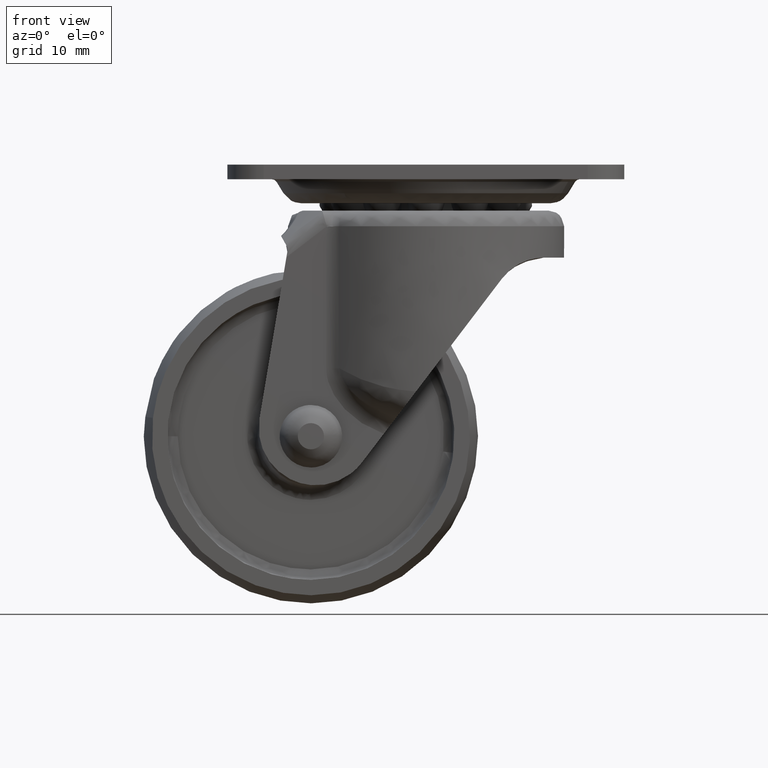
[diagram: clean part render]
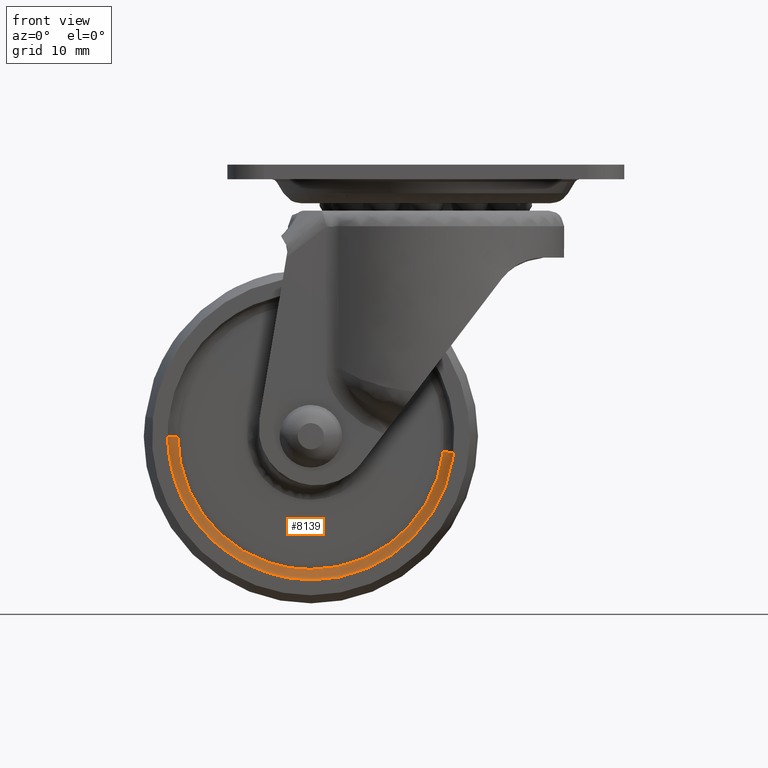
[diagram: same view with one face highlighted and labeled with its STEP entity id]
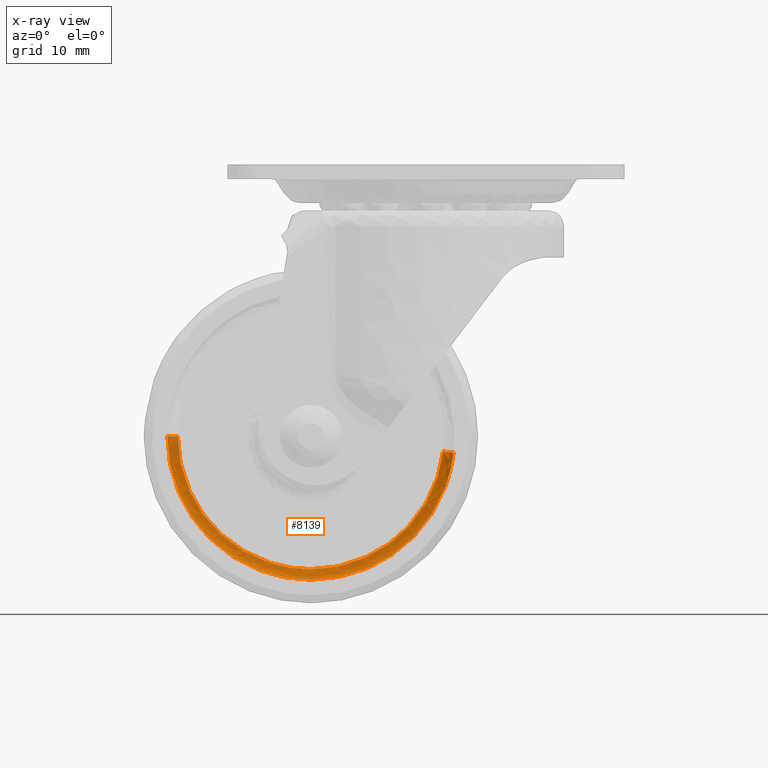
[diagram: x-ray of the same camera — body ghosted, the highlighted face saturated]
A machine part, front view. The second image highlights one B-rep face of the part: STEP entity #8139.
The next image is the same camera in x-ray: the body ghosted, the highlighted face saturated — about 0% of this face is hidden behind the body in this view.
In plain terms, the highlighted face is a freeform B-spline surface patch.
Its self-contained STEP definition (entity closure, byte-faithful):
#6840=CARTESIAN_POINT('',(-13.750000000000000,-5.499999999782693,0.0));
#6841=VERTEX_POINT('',#6840);
#6903=CARTESIAN_POINT('',(13.658035033293300,-5.499999999786727,-1.587633153260749));
#6904=VERTEX_POINT('',#6903);
#6920=CARTESIAN_POINT('',(0.0,-5.500000000000000,-13.750000000000000));
#6921=VERTEX_POINT('',#6920);
#6922=CARTESIAN_POINT('',(0.0,-5.500000000000000,-13.750000000000000));
#6923=CARTESIAN_POINT('',(12.244260886346135,-5.499999999999999,-13.750000000000005));
#6924=CARTESIAN_POINT('',(13.658035033293304,-5.499999999786727,-1.587633153260750));
#6932=(BOUNDED_CURVE()B_SPLINE_CURVE(2,(#6922,#6923,#6924),.UNSPECIFIED.,.F.,.U.)B_SPLINE_CURVE_WITH_KNOTS((3,3),(0.0,0.229999999999666),.UNSPECIFIED.)CURVE()GEOMETRIC_REPRESENTATION_ITEM()RATIONAL_B_SPLINE_CURVE((1.0,0.730538238692015,0.956886118190002))REPRESENTATION_ITEM(''));
#6933=EDGE_CURVE('',#6921,#6904,#6932,.T.);
#6935=CARTESIAN_POINT('',(-13.750000000000000,-5.499999999782693,0.0));
#6936=CARTESIAN_POINT('',(-13.750000000000000,-5.500000000000000,-13.750000000000000));
#6937=CARTESIAN_POINT('',(0.0,-5.500000000000000,-13.750000000000000));
#6945=(BOUNDED_CURVE()B_SPLINE_CURVE(2,(#6935,#6936,#6937),.UNSPECIFIED.,.F.,.U.)B_SPLINE_CURVE_WITH_KNOTS((3,3),(0.750000000000000,1.0),.UNSPECIFIED.)CURVE()GEOMETRIC_REPRESENTATION_ITEM()RATIONAL_B_SPLINE_CURVE((1.0,0.707106781186547,1.0))REPRESENTATION_ITEM(''));
#6946=EDGE_CURVE('',#6841,#6921,#6945,.T.);
#8015=CARTESIAN_POINT('',(12.664723395109540,-4.500000000000000,-1.472168924008367));
#8016=VERTEX_POINT('',#8015);
#8034=CARTESIAN_POINT('',(12.664723395109533,-4.500000000000000,-1.472168924008366));
#8035=CARTESIAN_POINT('',(13.658035032871178,-4.500000001211832,-1.587633153198017));
#8036=CARTESIAN_POINT('',(13.658035033293306,-5.499999999786727,-1.587633153260750));
#8044=(BOUNDED_CURVE()B_SPLINE_CURVE(2,(#8034,#8035,#8036),.UNSPECIFIED.,.F.,.U.)B_SPLINE_CURVE_WITH_KNOTS((3,3),(-1.736413119817970,-0.276558718454398),.UNSPECIFIED.)CURVE()GEOMETRIC_REPRESENTATION_ITEM()RATIONAL_B_SPLINE_CURVE((0.850203275869296,0.599621899501136,0.845789311749376))REPRESENTATION_ITEM(''));
#8045=EDGE_CURVE('',#8016,#6904,#8044,.T.);
#8051=CARTESIAN_POINT('',(-12.750000000088271,-4.500000000000000,0.0));
#8052=VERTEX_POINT('',#8051);
#8053=CARTESIAN_POINT('',(-12.750000000088269,-4.500000000000000,0.0));
#8054=CARTESIAN_POINT('',(-13.749999999565381,-4.500000000176552,0.0));
#8055=CARTESIAN_POINT('',(-13.749999999999998,-5.499999999782693,0.0));
#8063=(BOUNDED_CURVE()B_SPLINE_CURVE(2,(#8053,#8054,#8055),.UNSPECIFIED.,.F.,.U.)B_SPLINE_CURVE_WITH_KNOTS((3,3),(-1.736413120889447,-0.276558718462704),.UNSPECIFIED.)CURVE()GEOMETRIC_REPRESENTATION_ITEM()RATIONAL_B_SPLINE_CURVE((0.888510408996996,0.626638727350008,0.883897566980955))REPRESENTATION_ITEM(''));
#8064=EDGE_CURVE('',#8052,#6841,#8063,.T.);
#8082=CARTESIAN_POINT('',(-12.680649424535341,-4.502407649546810,7.764402E-016));
#8083=CARTESIAN_POINT('',(-12.680649424535337,-4.502407649546811,-12.680649424535336));
#8084=CARTESIAN_POINT('',(-1.552880E-015,-4.502407649546810,-12.680649424535341));
#8085=CARTESIAN_POINT('',(11.292013073644672,-4.502407649546810,-12.680649424535334));
#8086=CARTESIAN_POINT('',(12.595836660744304,-4.502407649546811,-1.464161413170778));
#8087=CARTESIAN_POINT('',(-13.827739271919963,-4.422664314516575,8.466769E-016));
#8088=CARTESIAN_POINT('',(-13.827739271919967,-4.422664314516573,-13.827739271919961));
#8089=CARTESIAN_POINT('',(-1.693354E-015,-4.422664314516575,-13.827739271919963));
#8090=CARTESIAN_POINT('',(12.313487062843528,-4.422664314516574,-13.827739271919965));
#8091=CARTESIAN_POINT('',(13.735254356883654,-4.422664314516574,-1.596609258367955));
#8092=CARTESIAN_POINT('',(-13.747566305559257,-5.569724213963659,8.417679E-016));
#8093=CARTESIAN_POINT('',(-13.747566305559253,-5.569724213963658,-13.747566305559253));
#8094=CARTESIAN_POINT('',(-1.683536E-015,-5.569724213963659,-13.747566305559257));
#8095=CARTESIAN_POINT('',(12.242093701668631,-5.569724213963658,-13.747566305559250));
#8096=CARTESIAN_POINT('',(13.655617616281640,-5.569724213963659,-1.587352148594251));
#8104=(BOUNDED_SURFACE()B_SPLINE_SURFACE(2,2,((#8082,#8087,#8092),(#8083,#8088,#8093),(#8084,#8089,#8094),(#8085,#8090,#8095),(#8086,#8091,#8096)),.UNSPECIFIED.,.F.,.F.,.U.)B_SPLINE_SURFACE_WITH_KNOTS((3,2,3),(3,3),(0.0,22.777713653544112,43.733210214804693),(0.0,1.822370362509248),.UNSPECIFIED.)GEOMETRIC_REPRESENTATION_ITEM()RATIONAL_B_SPLINE_SURFACE(((0.915966621911565,0.599412927647948,0.910892953526734),(0.647686209694202,0.423848945870745,0.644098584373797),(0.915966621911565,0.599412927647948,0.910892953526734),(0.669148642671591,0.437894064412921,0.665442133906032),(0.876475745233169,0.573569909530343,0.871620822387422)))REPRESENTATION_ITEM('')SURFACE());
#8105=CARTESIAN_POINT('',(0.0,-4.500000000000000,-12.750000000000000));
#8106=VERTEX_POINT('',#8105);
#8107=CARTESIAN_POINT('',(0.0,-4.500000000000000,-12.750000000000000));
#8108=CARTESIAN_POINT('',(11.353769185510650,-4.500000000000000,-12.750000000000000));
#8109=CARTESIAN_POINT('',(12.664723395109537,-4.500000000000000,-1.472168924008367));
#8117=(BOUNDED_CURVE()B_SPLINE_CURVE(2,(#8107,#8108,#8109),.UNSPECIFIED.,.F.,.U.)B_SPLINE_CURVE_WITH_KNOTS((3,3),(0.0,0.229999999999513),.UNSPECIFIED.)CURVE()GEOMETRIC_REPRESENTATION_ITEM()RATIONAL_B_SPLINE_CURVE((1.0,0.730538238692194,0.956886118189702))REPRESENTATION_ITEM(''));
#8118=EDGE_CURVE('',#8106,#8016,#8117,.T.);
#8119=ORIENTED_EDGE('',*,*,#8118,.F.);
#8120=CARTESIAN_POINT('',(-12.750000000088274,-4.500000000000000,0.0));
#8121=CARTESIAN_POINT('',(-12.749999999999993,-4.500000000000001,-12.750000000000000));
#8122=CARTESIAN_POINT('',(0.0,-4.500000000000000,-12.750000000000000));
#8130=(BOUNDED_CURVE()B_SPLINE_CURVE(2,(#8120,#8121,#8122),.UNSPECIFIED.,.F.,.U.)B_SPLINE_CURVE_WITH_KNOTS((3,3),(0.750000000000000,1.0),.UNSPECIFIED.)CURVE()GEOMETRIC_REPRESENTATION_ITEM()RATIONAL_B_SPLINE_CURVE((1.000000000000000,0.707106781186548,1.0))REPRESENTATION_ITEM(''));
#8131=EDGE_CURVE('',#8052,#8106,#8130,.T.);
#8132=ORIENTED_EDGE('',*,*,#8131,.F.);
#8133=ORIENTED_EDGE('',*,*,#8064,.T.);
#8134=ORIENTED_EDGE('',*,*,#6946,.T.);
#8135=ORIENTED_EDGE('',*,*,#6933,.T.);
#8136=ORIENTED_EDGE('',*,*,#8045,.F.);
#8137=EDGE_LOOP('',(#8119,#8132,#8133,#8134,#8135,#8136));
#8138=FACE_OUTER_BOUND('',#8137,.T.);
#8139=ADVANCED_FACE('',(#8138),#8104,.F.);